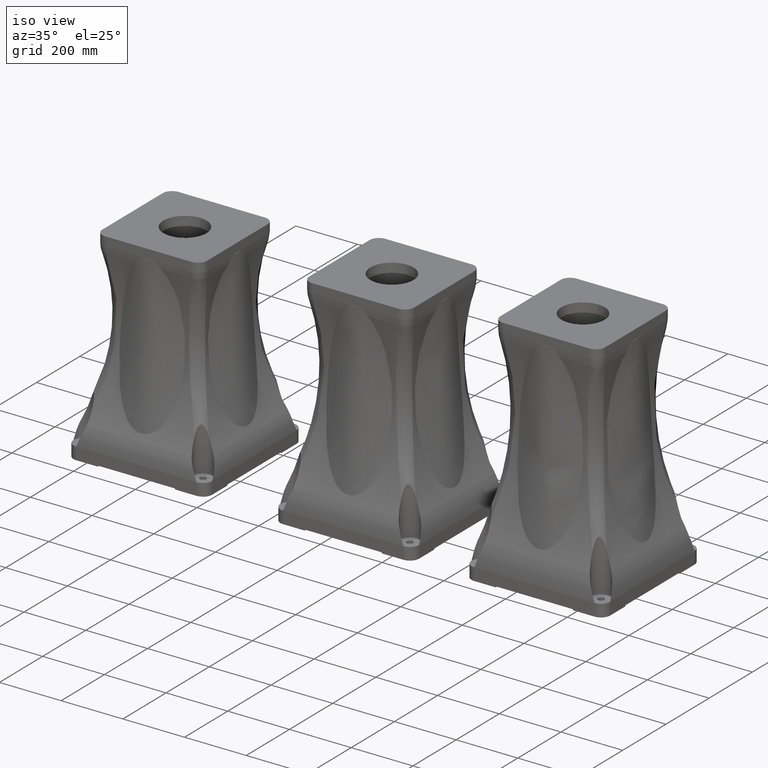
[diagram: clean part render]
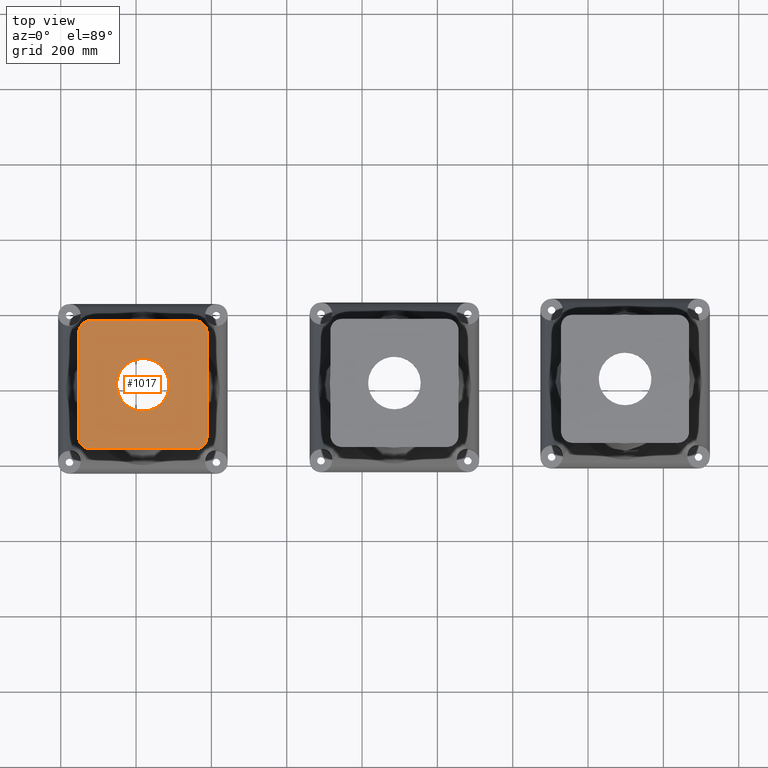
[diagram: tour spotlight — one face highlighted and labeled with its STEP entity id]
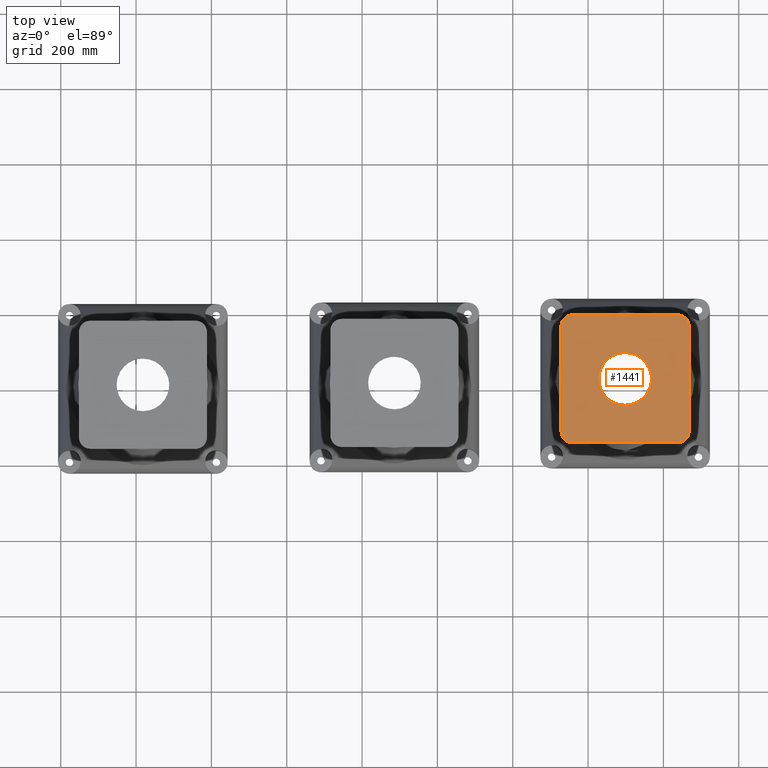
[diagram: tour spotlight — one face highlighted and labeled with its STEP entity id]
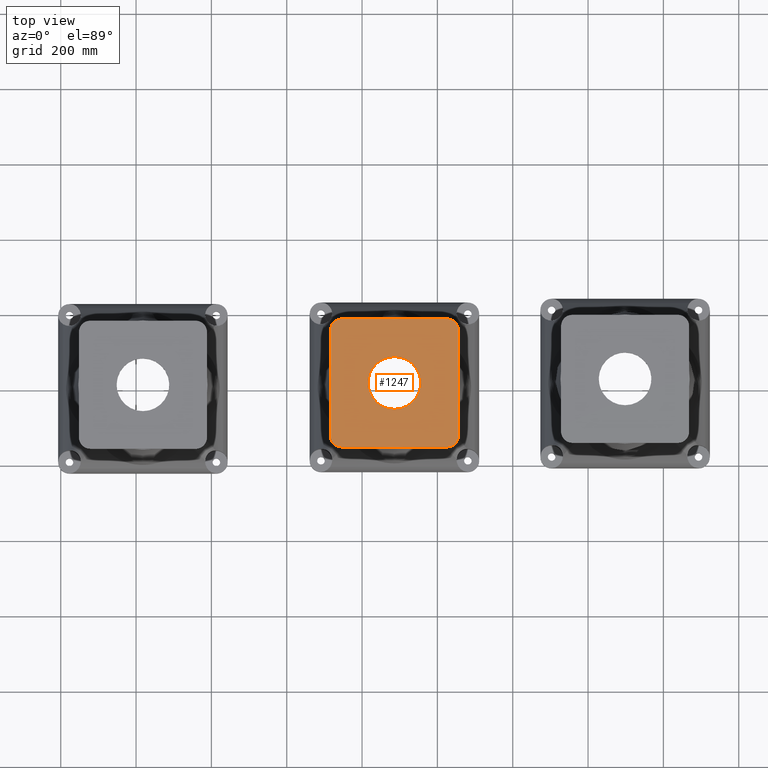
[diagram: tour spotlight — one face highlighted and labeled with its STEP entity id]
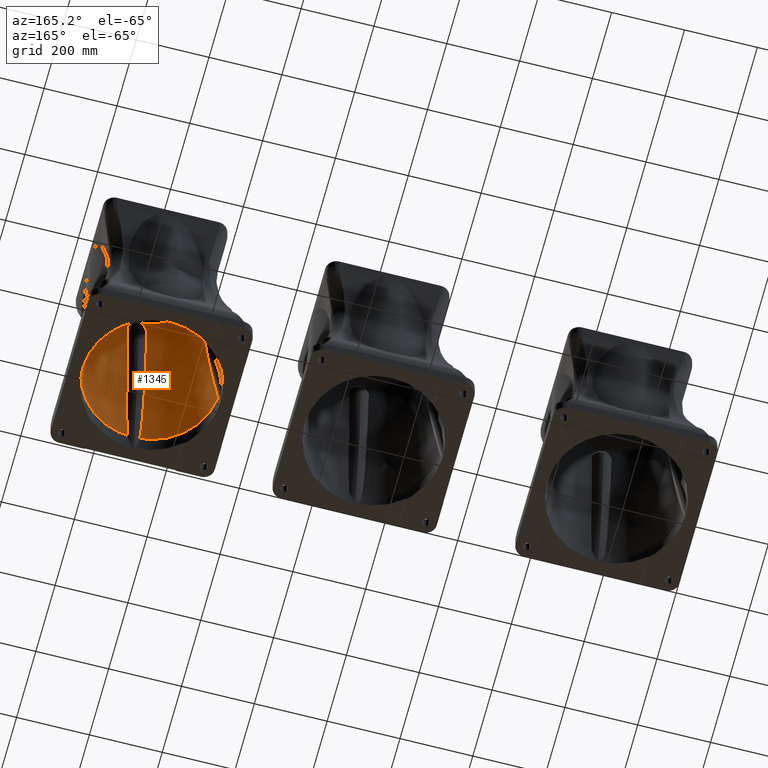
[diagram: tour spotlight — one face highlighted and labeled with its STEP entity id]
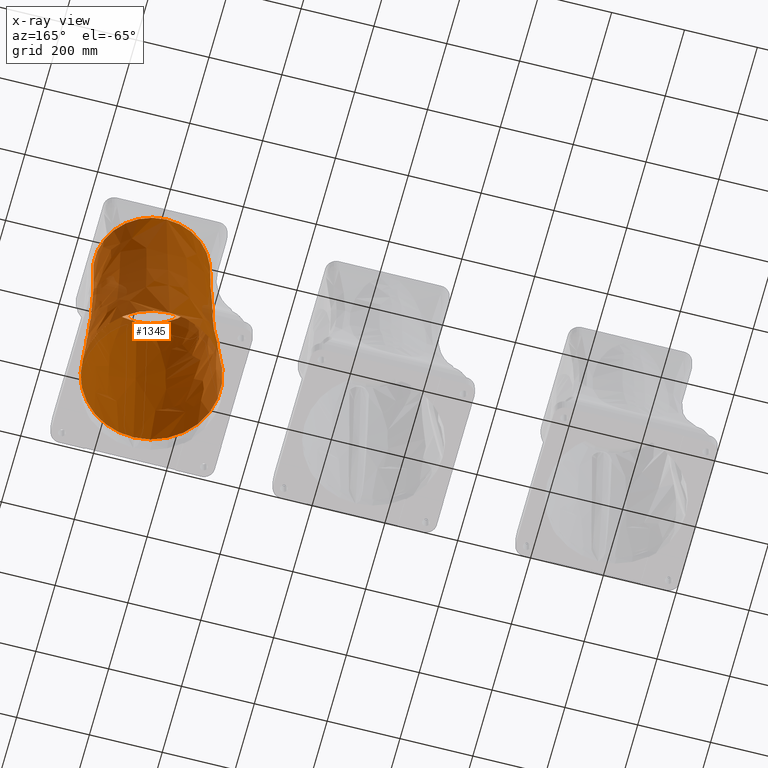
[diagram: x-ray of the same camera — body ghosted, this tour face saturated]
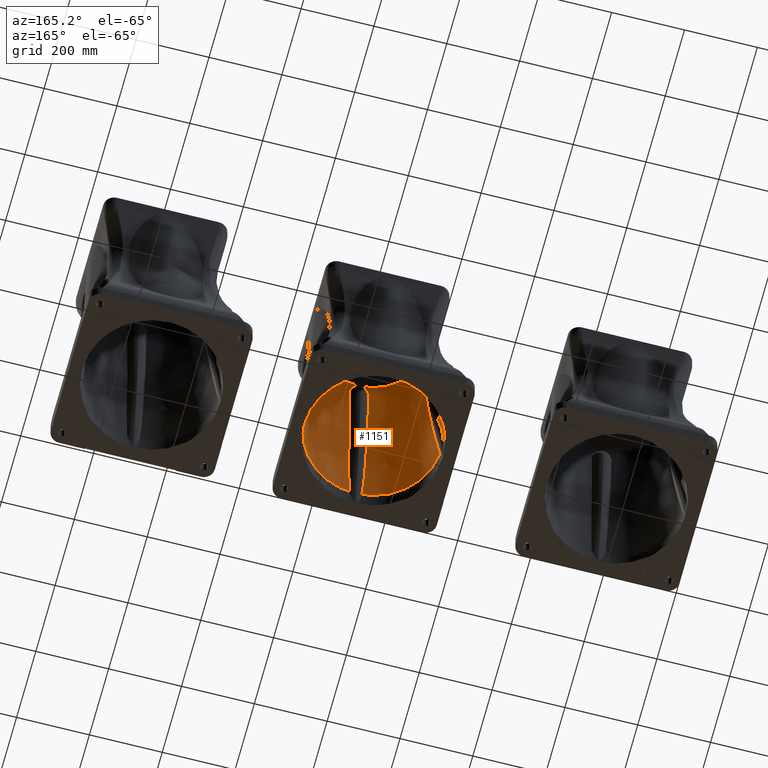
[diagram: tour spotlight — one face highlighted and labeled with its STEP entity id]
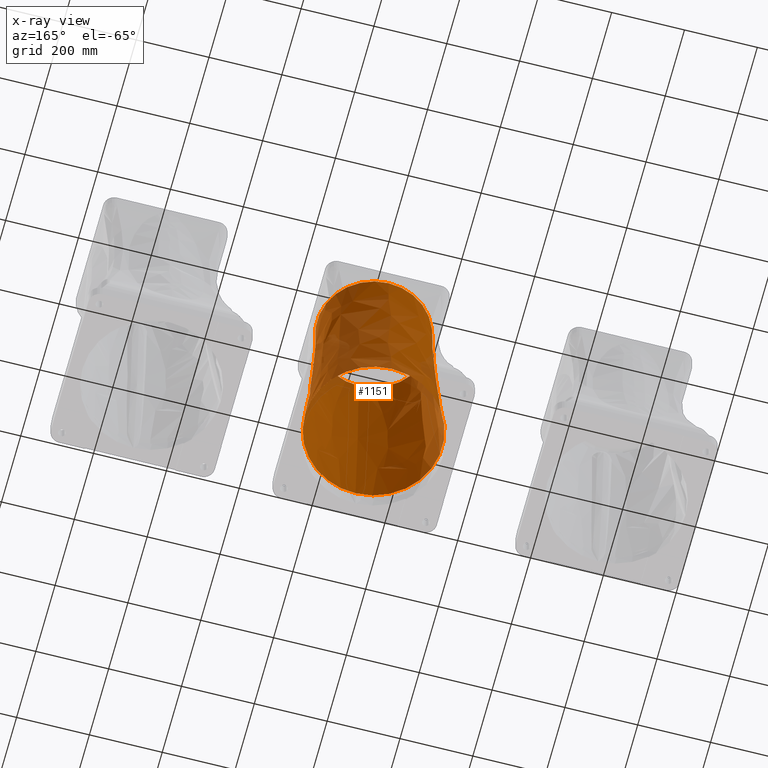
[diagram: x-ray of the same camera — body ghosted, this tour face saturated]
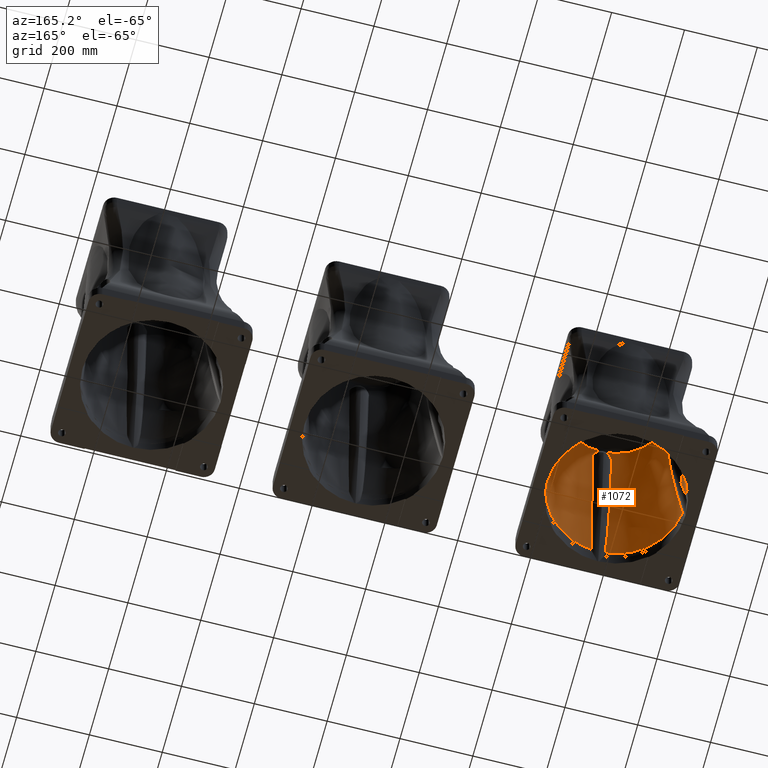
[diagram: tour spotlight — one face highlighted and labeled with its STEP entity id]
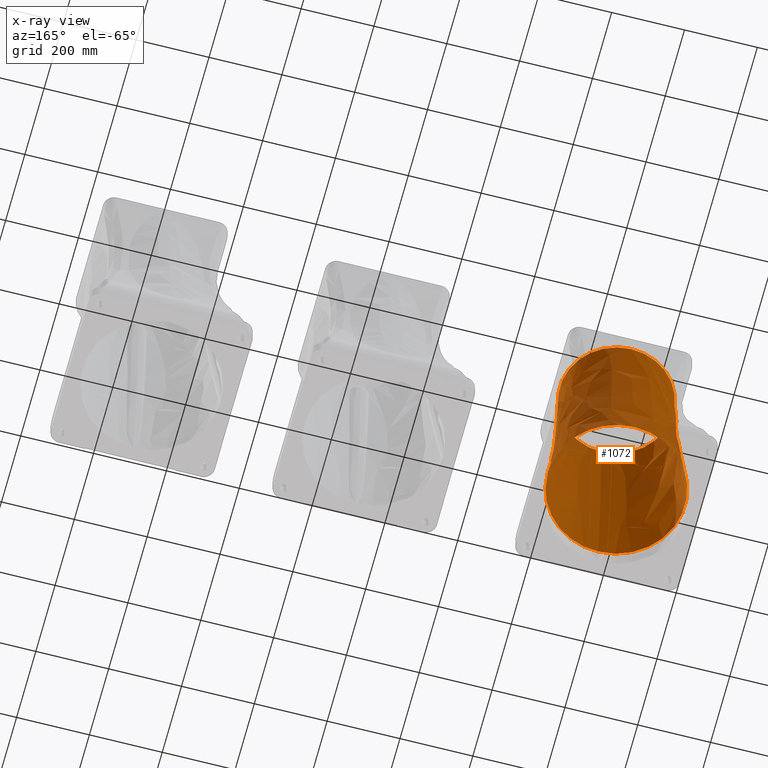
[diagram: x-ray of the same camera — body ghosted, this tour face saturated]
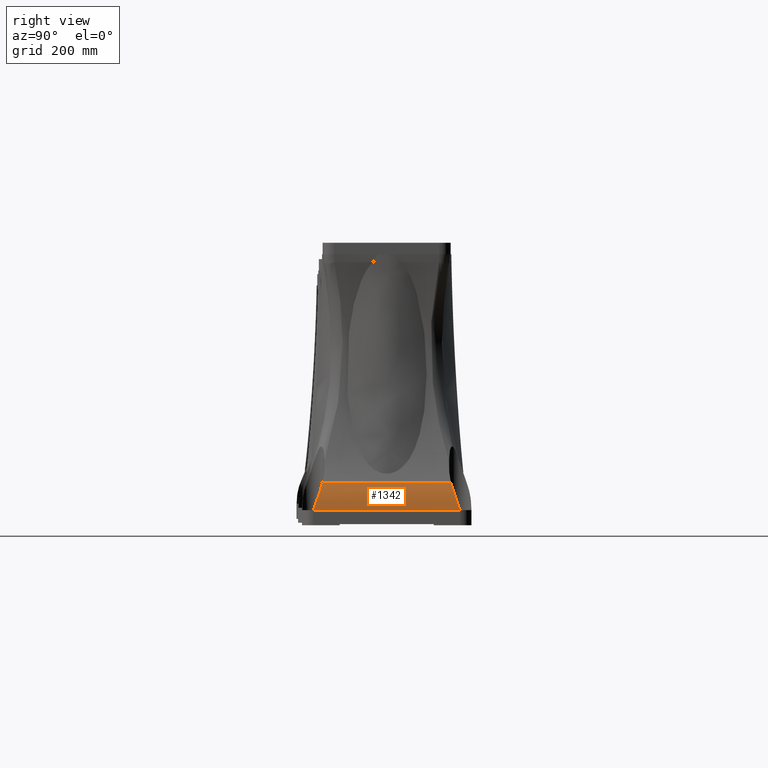
[diagram: tour spotlight — one face highlighted and labeled with its STEP entity id]
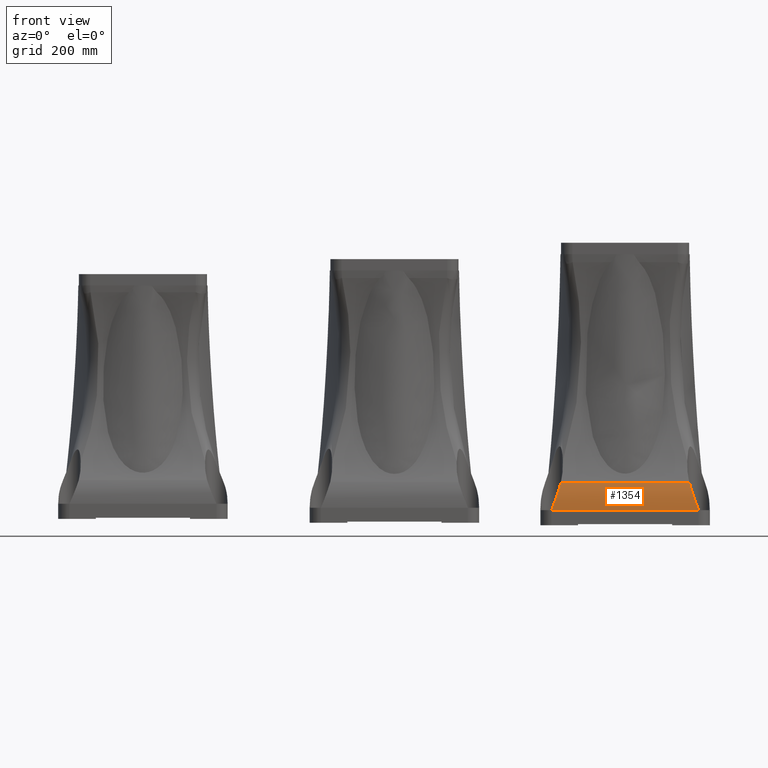
[diagram: tour spotlight — one face highlighted and labeled with its STEP entity id]
A machine part: a face-by-face anatomy tour. The part has 543 B-rep faces; the first image is the clean iso view, then the 8 largest visible faces are spotlighted one at a time (largest first), each with its STEP entity span.

Face 1 — top view, entity #1017. In plain terms, the highlighted planar face has unit normal (0, 0, 1).
Definition (entity closure, byte-faithful):
#1017=ADVANCED_FACE('',(#1668,#1669),#1670,.T.);
#1668=FACE_OUTER_BOUND('',#2832,.T.);
#1669=FACE_BOUND('',#2833,.T.);
#1670=PLANE('',#2834);
#2832=EDGE_LOOP('',(#10445,#10446,#10447,#10448,#10449,#10450,#10451,#10452));
#2833=EDGE_LOOP('',(#10453));
#2834=AXIS2_PLACEMENT_3D('',#10454,#10455,#10456);
#10445=ORIENTED_EDGE('',*,*,#14581,.T.);
#10446=ORIENTED_EDGE('',*,*,#14579,.T.);
#10447=ORIENTED_EDGE('',*,*,#14582,.T.);
#10448=ORIENTED_EDGE('',*,*,#14576,.T.);
#10449=ORIENTED_EDGE('',*,*,#14583,.T.);
#10450=ORIENTED_EDGE('',*,*,#14570,.T.);
#10451=ORIENTED_EDGE('',*,*,#14584,.T.);
#10452=ORIENTED_EDGE('',*,*,#14573,.T.);
#10453=ORIENTED_EDGE('',*,*,#14423,.T.);
#10454=CARTESIAN_POINT('',(376.588,-180.555555555556,1049.99968463017));
#10455=DIRECTION('',(0.0,-0.0,1.0));
#10456=DIRECTION('',(0.0,1.0,0.0));
#14423=EDGE_CURVE('',#15709,#15709,#15710,.F.);
#14570=EDGE_CURVE('',#15939,#15937,#15940,.T.);
#14573=EDGE_CURVE('',#15944,#15942,#15945,.T.);
#14576=EDGE_CURVE('',#15949,#15947,#15950,.T.);
#14579=EDGE_CURVE('',#15954,#15952,#15955,.T.);
#14581=EDGE_CURVE('',#15942,#15954,#15957,.T.);
#14582=EDGE_CURVE('',#15952,#15949,#15958,.T.);
#14583=EDGE_CURVE('',#15947,#15939,#15959,.T.);
#14584=EDGE_CURVE('',#15937,#15944,#15960,.T.);
#15709=VERTEX_POINT('',#17801);
#15710=CIRCLE('',#17802,70.0);
#15937=VERTEX_POINT('',#18085);
#15939=VERTEX_POINT('',#18088);
#15940=CIRCLE('',#18089,30.0);
#15942=VERTEX_POINT('',#18092);
#15944=VERTEX_POINT('',#18095);
#15945=CIRCLE('',#18096,30.0);
#15947=VERTEX_POINT('',#18099);
#15949=VERTEX_POINT('',#18102);
#15950=CIRCLE('',#18103,30.0);
#15952=VERTEX_POINT('',#18106);
#15954=VERTEX_POINT('',#18109);
#15955=CIRCLE('',#18110,30.0);
#15957=LINE('',#18113,#18114);
#15958=LINE('',#18115,#18116);
#15959=LINE('',#18117,#18118);
#15960=LINE('',#18119,#18120);
#17801=CARTESIAN_POINT('',(206.588,59.4444444444446,1049.99968463017));
#17802=AXIS2_PLACEMENT_3D('',#30015,#30016,#30017);
#18085=CARTESIAN_POINT('',(346.588,159.444444444444,1049.99968463017));
#18088=CARTESIAN_POINT('',(376.588,129.444444444444,1049.99968463017));
#18089=AXIS2_PLACEMENT_3D('',#30342,#30343,#30344);
#18092=CARTESIAN_POINT('',(36.588,129.444444444444,1049.99968463017));
#18095=CARTESIAN_POINT('',(66.588,159.444444444444,1049.99968463017));
#18096=AXIS2_PLACEMENT_3D('',#30347,#30348,#30349);
#18099=CARTESIAN_POINT('',(376.588,-150.555555555556,1049.99968463017));
#18102=CARTESIAN_POINT('',(346.588,-180.555555555556,1049.99968463017));
#18103=AXIS2_PLACEMENT_3D('',#30352,#30353,#30354);
#18106=CARTESIAN_POINT('',(66.588,-180.555555555556,1049.99968463017));
#18109=CARTESIAN_POINT('',(36.588,-150.555555555556,1049.99968463017));
#18110=AXIS2_PLACEMENT_3D('',#30357,#30358,#30359);
#18113=CARTESIAN_POINT('',(36.588,159.444444444444,1049.99968463017));
#18114=VECTOR('',#30361,1.0);
#18115=CARTESIAN_POINT('',(36.588,-180.555555555556,1049.99968463017));
#18116=VECTOR('',#30362,1.0);
#18117=CARTESIAN_POINT('',(376.588,-180.555555555556,1049.99968463017));
#18118=VECTOR('',#30363,1.0);
#18119=CARTESIAN_POINT('',(376.588,159.444444444444,1049.99968463017));
#18120=VECTOR('',#30364,1.0);
#30015=CARTESIAN_POINT('',(206.588,-10.5555555555554,1049.99968463017));
#30016=DIRECTION('',(0.0,-0.0,1.0));
#30017=DIRECTION('',(0.0,1.0,0.0));
#30342=CARTESIAN_POINT('',(346.588,129.444444444444,1049.99968463017));
#30343=DIRECTION('',(0.0,-0.0,1.0));
#30344=DIRECTION('',(0.0,1.0,0.0));
#30347=CARTESIAN_POINT('',(66.588,129.444444444444,1049.99968463017));
#30348=DIRECTION('',(0.0,-0.0,1.0));
#30349=DIRECTION('',(0.0,1.0,0.0));
#30352=CARTESIAN_POINT('',(346.588,-150.555555555556,1049.99968463017));
#30353=DIRECTION('',(0.0,-0.0,1.0));
#30354=DIRECTION('',(0.0,1.0,0.0));
#30357=CARTESIAN_POINT('',(66.588,-150.555555555556,1049.99968463017));
#30358=DIRECTION('',(0.0,-0.0,1.0));
#30359=DIRECTION('',(0.0,1.0,0.0));
#30361=DIRECTION('',(0.0,-1.0,0.0));
#30362=DIRECTION('',(1.0,0.0,0.0));
#30363=DIRECTION('',(0.0,1.0,0.0));
#30364=DIRECTION('',(-1.0,0.0,0.0));

Face 2 — top view, entity #1441. In plain terms, the highlighted planar face has unit normal (0, 0, 1).
Definition (entity closure, byte-faithful):
#1441=ADVANCED_FACE('',(#2520,#2521),#2522,.T.);
#2520=FACE_OUTER_BOUND('',#8379,.T.);
#2521=FACE_BOUND('',#8380,.T.);
#2522=PLANE('',#8381);
#8379=EDGE_LOOP('',(#13919,#13920,#13921,#13922,#13923,#13924,#13925,#13926));
#8380=EDGE_LOOP('',(#13927));
#8381=AXIS2_PLACEMENT_3D('',#13928,#13929,#13930);
#13919=ORIENTED_EDGE('',*,*,#15524,.T.);
#13920=ORIENTED_EDGE('',*,*,#15522,.T.);
#13921=ORIENTED_EDGE('',*,*,#15525,.T.);
#13922=ORIENTED_EDGE('',*,*,#15519,.T.);
#13923=ORIENTED_EDGE('',*,*,#15526,.T.);
#13924=ORIENTED_EDGE('',*,*,#15513,.T.);
#13925=ORIENTED_EDGE('',*,*,#15527,.T.);
#13926=ORIENTED_EDGE('',*,*,#15516,.T.);
#13927=ORIENTED_EDGE('',*,*,#15366,.T.);
#13928=CARTESIAN_POINT('',(376.588,-180.555555555556,1049.99968463017));
#13929=DIRECTION('',(0.0,-0.0,1.0));
#13930=DIRECTION('',(0.0,1.0,0.0));
#15366=EDGE_CURVE('',#17251,#17251,#17252,.F.);
#15513=EDGE_CURVE('',#17481,#17479,#17482,.T.);
#15516=EDGE_CURVE('',#17486,#17484,#17487,.T.);
#15519=EDGE_CURVE('',#17491,#17489,#17492,.T.);
#15522=EDGE_CURVE('',#17496,#17494,#17497,.T.);
#15524=EDGE_CURVE('',#17484,#17496,#17499,.T.);
#15525=EDGE_CURVE('',#17494,#17491,#17500,.T.);
#15526=EDGE_CURVE('',#17489,#17481,#17501,.T.);
#15527=EDGE_CURVE('',#17479,#17486,#17502,.T.);
#17251=VERTEX_POINT('',#28353);
#17252=CIRCLE('',#28354,70.0);
#17479=VERTEX_POINT('',#28637);
#17481=VERTEX_POINT('',#28640);
#17482=CIRCLE('',#28641,30.0);
#17484=VERTEX_POINT('',#28644);
#17486=VERTEX_POINT('',#28647);
#17487=CIRCLE('',#28648,30.0);
#17489=VERTEX_POINT('',#28651);
#17491=VERTEX_POINT('',#28654);
#17492=CIRCLE('',#28655,30.0);
#17494=VERTEX_POINT('',#28658);
#17496=VERTEX_POINT('',#28661);
#17497=CIRCLE('',#28662,30.0);
#17499=LINE('',#28665,#28666);
#17500=LINE('',#28667,#28668);
#17501=LINE('',#28669,#28670);
#17502=LINE('',#28671,#28672);
#28353=CARTESIAN_POINT('',(206.588,59.4444444444446,1049.99968463017));
#28354=AXIS2_PLACEMENT_3D('',#31192,#31193,#31194);
#28637=CARTESIAN_POINT('',(346.588,159.444444444444,1049.99968463017));
#28640=CARTESIAN_POINT('',(376.588,129.444444444444,1049.99968463017));
#28641=AXIS2_PLACEMENT_3D('',#31519,#31520,#31521);
#28644=CARTESIAN_POINT('',(36.588,129.444444444444,1049.99968463017));
#28647=CARTESIAN_POINT('',(66.588,159.444444444444,1049.99968463017));
#28648=AXIS2_PLACEMENT_3D('',#31524,#31525,#31526);
#28651=CARTESIAN_POINT('',(376.588,-150.555555555556,1049.99968463017));
#28654=CARTESIAN_POINT('',(346.588,-180.555555555556,1049.99968463017));
#28655=AXIS2_PLACEMENT_3D('',#31529,#31530,#31531);
#28658=CARTESIAN_POINT('',(66.588,-180.555555555556,1049.99968463017));
#28661=CARTESIAN_POINT('',(36.588,-150.555555555556,1049.99968463017));
#28662=AXIS2_PLACEMENT_3D('',#31534,#31535,#31536);
#28665=CARTESIAN_POINT('',(36.588,159.444444444444,1049.99968463017));
#28666=VECTOR('',#31538,1.0);
#28667=CARTESIAN_POINT('',(36.588,-180.555555555556,1049.99968463017));
#28668=VECTOR('',#31539,1.0);
#28669=CARTESIAN_POINT('',(376.588,-180.555555555556,1049.99968463017));
#28670=VECTOR('',#31540,1.0);
#28671=CARTESIAN_POINT('',(376.588,159.444444444444,1049.99968463017));
#28672=VECTOR('',#31541,1.0);
#31192=CARTESIAN_POINT('',(206.588,-10.5555555555554,1049.99968463017));
#31193=DIRECTION('',(0.0,-0.0,1.0));
#31194=DIRECTION('',(0.0,1.0,0.0));
#31519=CARTESIAN_POINT('',(346.588,129.444444444444,1049.99968463017));
#31520=DIRECTION('',(0.0,-0.0,1.0));
#31521=DIRECTION('',(0.0,1.0,0.0));
#31524=CARTESIAN_POINT('',(66.588,129.444444444444,1049.99968463017));
#31525=DIRECTION('',(0.0,-0.0,1.0));
#31526=DIRECTION('',(0.0,1.0,0.0));
#31529=CARTESIAN_POINT('',(346.588,-150.555555555556,1049.99968463017));
#31530=DIRECTION('',(0.0,-0.0,1.0));
#31531=DIRECTION('',(0.0,1.0,0.0));
#31534=CARTESIAN_POINT('',(66.588,-150.555555555556,1049.99968463017));
#31535=DIRECTION('',(0.0,-0.0,1.0));
#31536=DIRECTION('',(0.0,1.0,0.0));
#31538=DIRECTION('',(0.0,-1.0,0.0));
#31539=DIRECTION('',(1.0,0.0,0.0));
#31540=DIRECTION('',(0.0,1.0,0.0));
#31541=DIRECTION('',(-1.0,0.0,0.0));

Face 3 — top view, entity #1247. In plain terms, the highlighted planar face has unit normal (0, 0, 1).
Definition (entity closure, byte-faithful):
#1247=ADVANCED_FACE('',(#2132,#2133),#2134,.T.);
#2132=FACE_OUTER_BOUND('',#5910,.T.);
#2133=FACE_BOUND('',#5911,.T.);
#2134=PLANE('',#5912);
#5910=EDGE_LOOP('',(#12446,#12447,#12448,#12449,#12450,#12451,#12452,#12453));
#5911=EDGE_LOOP('',(#12454));
#5912=AXIS2_PLACEMENT_3D('',#12455,#12456,#12457);
#12446=ORIENTED_EDGE('',*,*,#15098,.T.);
#12447=ORIENTED_EDGE('',*,*,#15096,.T.);
#12448=ORIENTED_EDGE('',*,*,#15099,.T.);
#12449=ORIENTED_EDGE('',*,*,#15093,.T.);
#12450=ORIENTED_EDGE('',*,*,#15100,.T.);
#12451=ORIENTED_EDGE('',*,*,#15087,.T.);
#12452=ORIENTED_EDGE('',*,*,#15101,.T.);
#12453=ORIENTED_EDGE('',*,*,#15090,.T.);
#12454=ORIENTED_EDGE('',*,*,#14940,.T.);
#12455=CARTESIAN_POINT('',(376.588,-180.555555555556,1049.99968463017));
#12456=DIRECTION('',(0.0,-0.0,1.0));
#12457=DIRECTION('',(0.0,1.0,0.0));
#14940=EDGE_CURVE('',#16555,#16555,#16556,.F.);
#15087=EDGE_CURVE('',#16785,#16783,#16786,.T.);
#15090=EDGE_CURVE('',#16790,#16788,#16791,.T.);
#15093=EDGE_CURVE('',#16795,#16793,#16796,.T.);
#15096=EDGE_CURVE('',#16800,#16798,#16801,.T.);
#15098=EDGE_CURVE('',#16788,#16800,#16803,.T.);
#15099=EDGE_CURVE('',#16798,#16795,#16804,.T.);
#15100=EDGE_CURVE('',#16793,#16785,#16805,.T.);
#15101=EDGE_CURVE('',#16783,#16790,#16806,.T.);
#16555=VERTEX_POINT('',#24425);
#16556=CIRCLE('',#24426,70.0);
#16783=VERTEX_POINT('',#24709);
#16785=VERTEX_POINT('',#24712);
#16786=CIRCLE('',#24713,30.0);
#16788=VERTEX_POINT('',#24716);
#16790=VERTEX_POINT('',#24719);
#16791=CIRCLE('',#24720,30.0);
#16793=VERTEX_POINT('',#24723);
#16795=VERTEX_POINT('',#24726);
#16796=CIRCLE('',#24727,30.0);
#16798=VERTEX_POINT('',#24730);
#16800=VERTEX_POINT('',#24733);
#16801=CIRCLE('',#24734,30.0);
#16803=LINE('',#24737,#24738);
#16804=LINE('',#24739,#24740);
#16805=LINE('',#24741,#24742);
#16806=LINE('',#24743,#24744);
#24425=CARTESIAN_POINT('',(206.588,59.4444444444446,1049.99968463017));
#24426=AXIS2_PLACEMENT_3D('',#30662,#30663,#30664);
#24709=CARTESIAN_POINT('',(346.588,159.444444444444,1049.99968463017));
#24712=CARTESIAN_POINT('',(376.588,129.444444444444,1049.99968463017));
#24713=AXIS2_PLACEMENT_3D('',#30989,#30990,#30991);
#24716=CARTESIAN_POINT('',(36.588,129.444444444444,1049.99968463017));
#24719=CARTESIAN_POINT('',(66.588,159.444444444444,1049.99968463017));
#24720=AXIS2_PLACEMENT_3D('',#30994,#30995,#30996);
#24723=CARTESIAN_POINT('',(376.588,-150.555555555556,1049.99968463017));
#24726=CARTESIAN_POINT('',(346.588,-180.555555555556,1049.99968463017));
#24727=AXIS2_PLACEMENT_3D('',#30999,#31000,#31001);
#24730=CARTESIAN_POINT('',(66.588,-180.555555555556,1049.99968463017));
#24733=CARTESIAN_POINT('',(36.588,-150.555555555556,1049.99968463017));
#24734=AXIS2_PLACEMENT_3D('',#31004,#31005,#31006);
#24737=CARTESIAN_POINT('',(36.588,159.444444444444,1049.99968463017));
#24738=VECTOR('',#31008,1.0);
#24739=CARTESIAN_POINT('',(36.588,-180.555555555556,1049.99968463017));
#24740=VECTOR('',#31009,1.0);
#24741=CARTESIAN_POINT('',(376.588,-180.555555555556,1049.99968463017));
#24742=VECTOR('',#31010,1.0);
#24743=CARTESIAN_POINT('',(376.588,159.444444444444,1049.99968463017));
#24744=VECTOR('',#31011,1.0);
#30662=CARTESIAN_POINT('',(206.588,-10.5555555555554,1049.99968463017));
#30663=DIRECTION('',(0.0,-0.0,1.0));
#30664=DIRECTION('',(0.0,1.0,0.0));
#30989=CARTESIAN_POINT('',(346.588,129.444444444444,1049.99968463017));
#30990=DIRECTION('',(0.0,-0.0,1.0));
#30991=DIRECTION('',(0.0,1.0,0.0));
#30994=CARTESIAN_POINT('',(66.588,129.444444444444,1049.99968463017));
#30995=DIRECTION('',(0.0,-0.0,1.0));
#30996=DIRECTION('',(0.0,1.0,0.0));
#30999=CARTESIAN_POINT('',(346.588,-150.555555555556,1049.99968463017));
#31000=DIRECTION('',(0.0,-0.0,1.0));
#31001=DIRECTION('',(0.0,1.0,0.0));
#31004=CARTESIAN_POINT('',(66.588,-150.555555555556,1049.99968463017));
#31005=DIRECTION('',(0.0,-0.0,1.0));
#31006=DIRECTION('',(0.0,1.0,0.0));
#31008=DIRECTION('',(0.0,-1.0,0.0));
#31009=DIRECTION('',(1.0,0.0,0.0));
#31010=DIRECTION('',(0.0,1.0,0.0));
#31011=DIRECTION('',(-1.0,0.0,0.0));

Face 4 — auxiliary view, entity #1345. An x-ray twin of the same camera follows (body ghosted, this face saturated) — the face is partly hidden behind the body. In plain terms, the highlighted face is a freeform B-spline surface patch.
Definition (entity closure, byte-faithful):
#1345=ADVANCED_FACE('',(#2318,#2319),#2320,.T.);
#2318=FACE_OUTER_BOUND('',#7627,.T.);
#2319=FACE_OUTER_BOUND('',#7628,.T.);
#2320=(B_SPLINE_SURFACE(3,3,((#7630,#7631,#7632,#7633,#7634,#7635,#7636),(#7637,#7638,#7639,#7640,#7641,#7642,#7643),(#7644,#7645,#7646,#7647,#7648,#7649,#7650),(#7651,#7652,#7653,#7654,#7655,#7656,#7657),(#7658,#7659,#7660,#7661,#7662,#7663,#7664),(#7665,#7666,#7667,#7668,#7669,#7670,#7671),(#7672,#7673,#7674,#7675,#7676,#7677,#7678)),.UNSPECIFIED.,.T.,.T.,.F.)B_SPLINE_SURFACE_WITH_KNOTS((4,3,4),(4,3,4),(0.0,0.5,1.0),(0.0,0.5,1.0),.UNSPECIFIED.)RATIONAL_B_SPLINE_SURFACE(((1.0,0.333333333333334,0.333333333333334,1.0,0.333333333333334,0.333333333333334,1.0),(0.333333333333334,0.111111111111111,0.111111111111111,0.333333333333334,0.111111111111111,0.111111111111111,0.333333333333334),(0.333333333333334,0.111111111111111,0.111111111111111,0.333333333333334,0.111111111111111,0.111111111111111,0.333333333333334),(1.0,0.333333333333334,0.333333333333334,1.0,0.333333333333334,0.333333333333334,1.0),(0.333333333333334,0.111111111111111,0.111111111111111,0.333333333333334,0.111111111111111,0.111111111111111,0.333333333333334),(0.333333333333334,0.111111111111111,0.111111111111111,0.333333333333334,0.111111111111111,0.111111111111111,0.333333333333334),(1.0,0.333333333333334,0.333333333333334,1.0,0.333333333333334,0.333333333333334,1.0)))BOUNDED_SURFACE()REPRESENTATION_ITEM('')GEOMETRIC_REPRESENTATION_ITEM()SURFACE());
#7627=EDGE_LOOP('',(#13141));
#7628=EDGE_LOOP('',(#13142));
#7630=CARTESIAN_POINT('',(206.588,-540.555555555557,-287.885450174491));
#7631=CARTESIAN_POINT('',(1266.588,-540.555555555556,-287.885450174491));
#7632=CARTESIAN_POINT('',(1266.588,519.444444444445,-287.885450174491));
#7633=CARTESIAN_POINT('',(206.588,519.444444444446,-287.885450174491));
#7634=CARTESIAN_POINT('',(-853.412000000002,519.444444444445,-287.885450174491));
#7635=CARTESIAN_POINT('',(-853.412000000002,-540.555555555556,-287.885450174491));
#7636=CARTESIAN_POINT('',(206.588,-540.555555555557,-287.885450174491));
#7637=CARTESIAN_POINT('',(206.588,209.444444444443,-287.885450174491));
#7638=CARTESIAN_POINT('',(-233.411999999997,209.444444444443,-287.885450174491));
#7639=CARTESIAN_POINT('',(-233.411999999997,-230.555555555555,-287.885450174491));
#7640=CARTESIAN_POINT('',(206.588,-230.555555555554,-287.885450174491));
#7641=CARTESIAN_POINT('',(646.587999999999,-230.555555555554,-287.885450174491));
#7642=CARTESIAN_POINT('',(646.587999999998,209.444444444444,-287.885450174491));
#7643=CARTESIAN_POINT('',(206.588,209.444444444443,-287.885450174491));
#7644=CARTESIAN_POINT('',(206.588,209.444444444443,3355.94143673181));
#7645=CARTESIAN_POINT('',(-233.411999999999,209.444444444443,3355.94143673181));
#7646=CARTESIAN_POINT('',(-233.411999999998,-230.555555555555,3355.94143673181));
#7647=CARTESIAN_POINT('',(206.588000000001,-230.555555555555,3355.94143673181));
#7648=CARTESIAN_POINT('',(646.588,-230.555555555554,3355.94143673181));
#7649=CARTESIAN_POINT('',(646.587999999999,209.444444444445,3355.94143673181));
#7650=CARTESIAN_POINT('',(206.588,209.444444444443,3355.94143673181));
#7651=CARTESIAN_POINT('',(206.588,-540.555555555556,3355.94143673181));
#7652=CARTESIAN_POINT('',(1266.588,-540.555555555556,3355.94143673181));
#7653=CARTESIAN_POINT('',(1266.588,519.444444444444,3355.94143673181));
#7654=CARTESIAN_POINT('',(206.588,519.444444444445,3355.94143673181));
#7655=CARTESIAN_POINT('',(-853.412,519.444444444445,3355.94143673181));
#7656=CARTESIAN_POINT('',(-853.412,-540.555555555555,3355.94143673181));
#7657=CARTESIAN_POINT('',(206.588,-540.555555555556,3355.94143673181));
#7658=CARTESIAN_POINT('',(206.588,-1290.55555555556,3355.94143673181));
#7659=CARTESIAN_POINT('',(2766.58800000001,-1290.55555555556,3355.94143673181));
#7660=CARTESIAN_POINT('',(2766.58800000001,1269.44444444445,3355.94143673181));
#7661=CARTESIAN_POINT('',(206.588000000001,1269.44444444444,3355.94143673181));
#7662=CARTESIAN_POINT('',(-2353.412,1269.44444444445,3355.94143673181));
#7663=CARTESIAN_POINT('',(-2353.412,-1290.55555555556,3355.94143673181));
#7664=CARTESIAN_POINT('',(206.588,-1290.55555555556,3355.94143673181));
#7665=CARTESIAN_POINT('',(206.588,-1290.55555555556,-287.88545017449));
#7666=CARTESIAN_POINT('',(2766.58800000001,-1290.55555555556,-287.885450174491));
#7667=CARTESIAN_POINT('',(2766.58800000001,1269.44444444445,-287.885450174491));
#7668=CARTESIAN_POINT('',(206.588,1269.44444444444,-287.88545017449));
#7669=CARTESIAN_POINT('',(-2353.412,1269.44444444445,-287.885450174491));
#7670=CARTESIAN_POINT('',(-2353.412,-1290.55555555556,-287.885450174491));
#7671=CARTESIAN_POINT('',(206.588,-1290.55555555556,-287.88545017449));
#7672=CARTESIAN_POINT('',(206.588,-540.555555555557,-287.885450174491));
#7673=CARTESIAN_POINT('',(1266.588,-540.555555555556,-287.885450174491));
#7674=CARTESIAN_POINT('',(1266.588,519.444444444445,-287.885450174491));
#7675=CARTESIAN_POINT('',(206.588,519.444444444446,-287.885450174491));
#7676=CARTESIAN_POINT('',(-853.412000000002,519.444444444445,-287.885450174491));
#7677=CARTESIAN_POINT('',(-853.412000000002,-540.555555555556,-287.885450174491));
#7678=CARTESIAN_POINT('',(206.588,-540.555555555557,-287.885450174491));
#13141=ORIENTED_EDGE('',*,*,#15322,.F.);
#13142=ORIENTED_EDGE('',*,*,#15323,.T.);
#15322=EDGE_CURVE('',#17183,#17183,#17184,.T.);
#15323=EDGE_CURVE('',#17185,#17185,#17186,.T.);
#17183=VERTEX_POINT('',#27551);
#17184=CIRCLE('',#27552,188.548448375832);
#17185=VERTEX_POINT('',#27553);
#17186=CIRCLE('',#27554,155.545755020134);
#27551=CARTESIAN_POINT('',(395.136448375832,-10.5555555555555,780.800600286569));
#27552=AXIS2_PLACEMENT_3D('',#31158,#31159,#31160);
#27553=CARTESIAN_POINT('',(206.588,-166.10131057569,1435.76999684969));
#27554=AXIS2_PLACEMENT_3D('',#31161,#31162,#31163);
#31158=CARTESIAN_POINT('',(206.588,-10.5555555555555,780.800600286569));
#31159=DIRECTION('',(-8.83239587110384E-016,0.0,1.0));
#31160=DIRECTION('',(1.0,0.0,8.83239587110384E-016));
#31161=CARTESIAN_POINT('',(206.588,-10.5555555555555,1435.76999684969));
#31162=DIRECTION('',(0.0,1.42751954173413E-015,1.0));
#31163=DIRECTION('',(0.0,-1.0,1.42751954173413E-015));

Face 5 — auxiliary view, entity #1151. An x-ray twin of the same camera follows (body ghosted, this face saturated) — the face is partly hidden behind the body. In plain terms, the highlighted face is a freeform B-spline surface patch.
Definition (entity closure, byte-faithful):
#1151=ADVANCED_FACE('',(#1930,#1931),#1932,.T.);
#1930=FACE_OUTER_BOUND('',#5158,.T.);
#1931=FACE_OUTER_BOUND('',#5159,.T.);
#1932=(B_SPLINE_SURFACE(3,3,((#5161,#5162,#5163,#5164,#5165,#5166,#5167),(#5168,#5169,#5170,#5171,#5172,#5173,#5174),(#5175,#5176,#5177,#5178,#5179,#5180,#5181),(#5182,#5183,#5184,#5185,#5186,#5187,#5188),(#5189,#5190,#5191,#5192,#5193,#5194,#5195),(#5196,#5197,#5198,#5199,#5200,#5201,#5202),(#5203,#5204,#5205,#5206,#5207,#5208,#5209)),.UNSPECIFIED.,.T.,.T.,.F.)B_SPLINE_SURFACE_WITH_KNOTS((4,3,4),(4,3,4),(0.0,0.5,1.0),(0.0,0.5,1.0),.UNSPECIFIED.)RATIONAL_B_SPLINE_SURFACE(((1.0,0.333333333333334,0.333333333333334,1.0,0.333333333333334,0.333333333333334,1.0),(0.333333333333334,0.111111111111111,0.111111111111111,0.333333333333334,0.111111111111111,0.111111111111111,0.333333333333334),(0.333333333333334,0.111111111111111,0.111111111111111,0.333333333333334,0.111111111111111,0.111111111111111,0.333333333333334),(1.0,0.333333333333334,0.333333333333334,1.0,0.333333333333334,0.333333333333334,1.0),(0.333333333333334,0.111111111111111,0.111111111111111,0.333333333333334,0.111111111111111,0.111111111111111,0.333333333333334),(0.333333333333334,0.111111111111111,0.111111111111111,0.333333333333334,0.111111111111111,0.111111111111111,0.333333333333334),(1.0,0.333333333333334,0.333333333333334,1.0,0.333333333333334,0.333333333333334,1.0)))BOUNDED_SURFACE()REPRESENTATION_ITEM('')GEOMETRIC_REPRESENTATION_ITEM()SURFACE());
#5158=EDGE_LOOP('',(#11668));
#5159=EDGE_LOOP('',(#11669));
#5161=CARTESIAN_POINT('',(206.588,-540.555555555557,-266.717403920282));
#5162=CARTESIAN_POINT('',(1266.588,-540.555555555556,-266.717403920281));
#5163=CARTESIAN_POINT('',(1266.588,519.444444444445,-266.717403920281));
#5164=CARTESIAN_POINT('',(206.588,519.444444444446,-266.717403920282));
#5165=CARTESIAN_POINT('',(-853.412000000002,519.444444444445,-266.717403920281));
#5166=CARTESIAN_POINT('',(-853.412000000002,-540.555555555556,-266.717403920281));
#5167=CARTESIAN_POINT('',(206.588,-540.555555555557,-266.717403920282));
#5168=CARTESIAN_POINT('',(206.588,209.444444444443,-266.717403920282));
#5169=CARTESIAN_POINT('',(-233.411999999997,209.444444444443,-266.717403920282));
#5170=CARTESIAN_POINT('',(-233.411999999997,-230.555555555555,-266.717403920282));
#5171=CARTESIAN_POINT('',(206.588,-230.555555555554,-266.717403920282));
#5172=CARTESIAN_POINT('',(646.587999999999,-230.555555555554,-266.717403920282));
#5173=CARTESIAN_POINT('',(646.587999999998,209.444444444444,-266.717403920282));
#5174=CARTESIAN_POINT('',(206.588,209.444444444443,-266.717403920282));
#5175=CARTESIAN_POINT('',(206.588,209.444444444443,3109.18105507272));
#5176=CARTESIAN_POINT('',(-233.411999999999,209.444444444443,3109.18105507272));
#5177=CARTESIAN_POINT('',(-233.411999999998,-230.555555555555,3109.18105507272));
#5178=CARTESIAN_POINT('',(206.588000000001,-230.555555555555,3109.18105507272));
#5179=CARTESIAN_POINT('',(646.588,-230.555555555554,3109.18105507272));
#5180=CARTESIAN_POINT('',(646.587999999999,209.444444444445,3109.18105507272));
#5181=CARTESIAN_POINT('',(206.588,209.444444444443,3109.18105507272));
#5182=CARTESIAN_POINT('',(206.588,-540.555555555556,3109.18105507272));
#5183=CARTESIAN_POINT('',(1266.588,-540.555555555556,3109.18105507272));
#5184=CARTESIAN_POINT('',(1266.588,519.444444444444,3109.18105507272));
#5185=CARTESIAN_POINT('',(206.588,519.444444444445,3109.18105507272));
#5186=CARTESIAN_POINT('',(-853.412,519.444444444445,3109.18105507272));
#5187=CARTESIAN_POINT('',(-853.412,-540.555555555555,3109.18105507272));
#5188=CARTESIAN_POINT('',(206.588,-540.555555555556,3109.18105507272));
#5189=CARTESIAN_POINT('',(206.588,-1290.55555555556,3109.18105507272));
#5190=CARTESIAN_POINT('',(2766.58800000001,-1290.55555555556,3109.18105507272));
#5191=CARTESIAN_POINT('',(2766.58800000001,1269.44444444445,3109.18105507272));
#5192=CARTESIAN_POINT('',(206.588000000001,1269.44444444444,3109.18105507272));
#5193=CARTESIAN_POINT('',(-2353.412,1269.44444444445,3109.18105507272));
#5194=CARTESIAN_POINT('',(-2353.412,-1290.55555555556,3109.18105507272));
#5195=CARTESIAN_POINT('',(206.588,-1290.55555555556,3109.18105507272));
#5196=CARTESIAN_POINT('',(206.588,-1290.55555555556,-266.717403920281));
#5197=CARTESIAN_POINT('',(2766.58800000001,-1290.55555555556,-266.717403920282));
#5198=CARTESIAN_POINT('',(2766.58800000001,1269.44444444445,-266.717403920282));
#5199=CARTESIAN_POINT('',(206.588,1269.44444444444,-266.717403920281));
#5200=CARTESIAN_POINT('',(-2353.412,1269.44444444445,-266.717403920282));
#5201=CARTESIAN_POINT('',(-2353.412,-1290.55555555556,-266.717403920282));
#5202=CARTESIAN_POINT('',(206.588,-1290.55555555556,-266.717403920281));
#5203=CARTESIAN_POINT('',(206.588,-540.555555555557,-266.717403920282));
#5204=CARTESIAN_POINT('',(1266.588,-540.555555555556,-266.717403920281));
#5205=CARTESIAN_POINT('',(1266.588,519.444444444445,-266.717403920281));
#5206=CARTESIAN_POINT('',(206.588,519.444444444446,-266.717403920282));
#5207=CARTESIAN_POINT('',(-853.412000000002,519.444444444445,-266.717403920281));
#5208=CARTESIAN_POINT('',(-853.412000000002,-540.555555555556,-266.717403920281));
#5209=CARTESIAN_POINT('',(206.588,-540.555555555557,-266.717403920282));
#11668=ORIENTED_EDGE('',*,*,#14896,.F.);
#11669=ORIENTED_EDGE('',*,*,#14897,.T.);
#14896=EDGE_CURVE('',#16487,#16487,#16488,.T.);
#14897=EDGE_CURVE('',#16489,#16489,#16490,.T.);
#16487=VERTEX_POINT('',#23629);
#16488=CIRCLE('',#23630,188.548448375832);
#16489=VERTEX_POINT('',#23631);
#16490=CIRCLE('',#23632,155.545755020134);
#23629=CARTESIAN_POINT('',(395.136448375832,-10.5555555555555,723.388795653293));
#23630=AXIS2_PLACEMENT_3D('',#30628,#30629,#30630);
#23631=CARTESIAN_POINT('',(206.588,-166.10131057569,1330.19868129588));
#23632=AXIS2_PLACEMENT_3D('',#30631,#30632,#30633);
#30628=CARTESIAN_POINT('',(206.588,-10.5555555555555,723.388795653293));
#30629=DIRECTION('',(-8.83239587110384E-016,0.0,1.0));
#30630=DIRECTION('',(1.0,0.0,8.83239587110384E-016));
#30631=CARTESIAN_POINT('',(206.588,-10.5555555555555,1330.19868129588));
#30632=DIRECTION('',(0.0,2.14127931260119E-015,1.0));
#30633=DIRECTION('',(0.0,-1.0,2.14127931260119E-015));

Face 6 — auxiliary view, entity #1072. An x-ray twin of the same camera follows (body ghosted, this face saturated) — the face is partly hidden behind the body. In plain terms, the highlighted face is a freeform B-spline surface patch.
Definition (entity closure, byte-faithful):
#1072=ADVANCED_FACE('',(#1794,#1795),#1796,.T.);
#1794=FACE_OUTER_BOUND('',#3312,.T.);
#1795=FACE_OUTER_BOUND('',#3313,.T.);
#1796=(B_SPLINE_SURFACE(3,3,((#3315,#3316,#3317,#3318,#3319,#3320,#3321),(#3322,#3323,#3324,#3325,#3326,#3327,#3328),(#3329,#3330,#3331,#3332,#3333,#3334,#3335),(#3336,#3337,#3338,#3339,#3340,#3341,#3342),(#3343,#3344,#3345,#3346,#3347,#3348,#3349),(#3350,#3351,#3352,#3353,#3354,#3355,#3356),(#3357,#3358,#3359,#3360,#3361,#3362,#3363)),.UNSPECIFIED.,.T.,.T.,.F.)B_SPLINE_SURFACE_WITH_KNOTS((4,3,4),(4,3,4),(0.0,0.5,1.0),(0.0,0.5,1.0),.UNSPECIFIED.)RATIONAL_B_SPLINE_SURFACE(((1.0,0.333333333333334,0.333333333333334,1.0,0.333333333333334,0.333333333333334,1.0),(0.333333333333334,0.111111111111111,0.111111111111111,0.333333333333334,0.111111111111111,0.111111111111111,0.333333333333334),(0.333333333333334,0.111111111111111,0.111111111111111,0.333333333333334,0.111111111111111,0.111111111111111,0.333333333333334),(1.0,0.333333333333334,0.333333333333334,1.0,0.333333333333334,0.333333333333334,1.0),(0.333333333333334,0.111111111111111,0.111111111111111,0.333333333333334,0.111111111111111,0.111111111111111,0.333333333333334),(0.333333333333334,0.111111111111111,0.111111111111111,0.333333333333334,0.111111111111111,0.111111111111111,0.333333333333334),(1.0,0.333333333333334,0.333333333333334,1.0,0.333333333333334,0.333333333333334,1.0)))BOUNDED_SURFACE()REPRESENTATION_ITEM('')GEOMETRIC_REPRESENTATION_ITEM()SURFACE());
#3312=EDGE_LOOP('',(#11011));
#3313=EDGE_LOOP('',(#11012));
#3315=CARTESIAN_POINT('',(206.588,-540.555555555557,-245.549355210578));
#3316=CARTESIAN_POINT('',(1266.588,-540.555555555556,-245.549355210579));
#3317=CARTESIAN_POINT('',(1266.588,519.444444444445,-245.549355210579));
#3318=CARTESIAN_POINT('',(206.588,519.444444444446,-245.549355210578));
#3319=CARTESIAN_POINT('',(-853.412000000002,519.444444444445,-245.549355210579));
#3320=CARTESIAN_POINT('',(-853.412000000002,-540.555555555556,-245.549355210579));
#3321=CARTESIAN_POINT('',(206.588,-540.555555555557,-245.549355210578));
#3322=CARTESIAN_POINT('',(206.588,209.444444444443,-245.549355210579));
#3323=CARTESIAN_POINT('',(-233.411999999997,209.444444444443,-245.549355210579));
#3324=CARTESIAN_POINT('',(-233.411999999997,-230.555555555555,-245.549355210579));
#3325=CARTESIAN_POINT('',(206.588,-230.555555555554,-245.549355210579));
#3326=CARTESIAN_POINT('',(646.587999999999,-230.555555555554,-245.549355210579));
#3327=CARTESIAN_POINT('',(646.587999999998,209.444444444444,-245.549355210579));
#3328=CARTESIAN_POINT('',(206.588,209.444444444443,-245.549355210579));
#3329=CARTESIAN_POINT('',(206.588,209.444444444443,2862.42064478942));
#3330=CARTESIAN_POINT('',(-233.411999999999,209.444444444443,2862.42064478942));
#3331=CARTESIAN_POINT('',(-233.411999999998,-230.555555555555,2862.42064478942));
#3332=CARTESIAN_POINT('',(206.588000000001,-230.555555555555,2862.42064478942));
#3333=CARTESIAN_POINT('',(646.588,-230.555555555554,2862.42064478942));
#3334=CARTESIAN_POINT('',(646.587999999999,209.444444444445,2862.42064478942));
#3335=CARTESIAN_POINT('',(206.588,209.444444444443,2862.42064478942));
#3336=CARTESIAN_POINT('',(206.588,-540.555555555556,2862.42064478942));
#3337=CARTESIAN_POINT('',(1266.588,-540.555555555556,2862.42064478942));
#3338=CARTESIAN_POINT('',(1266.588,519.444444444444,2862.42064478942));
#3339=CARTESIAN_POINT('',(206.588,519.444444444445,2862.42064478942));
#3340=CARTESIAN_POINT('',(-853.412,519.444444444445,2862.42064478942));
#3341=CARTESIAN_POINT('',(-853.412,-540.555555555555,2862.42064478942));
#3342=CARTESIAN_POINT('',(206.588,-540.555555555556,2862.42064478942));
#3343=CARTESIAN_POINT('',(206.588,-1290.55555555556,2862.42064478942));
#3344=CARTESIAN_POINT('',(2766.58800000001,-1290.55555555556,2862.42064478943));
#3345=CARTESIAN_POINT('',(2766.58800000001,1269.44444444445,2862.42064478943));
#3346=CARTESIAN_POINT('',(206.588000000001,1269.44444444444,2862.42064478942));
#3347=CARTESIAN_POINT('',(-2353.412,1269.44444444445,2862.42064478943));
#3348=CARTESIAN_POINT('',(-2353.412,-1290.55555555556,2862.42064478943));
#3349=CARTESIAN_POINT('',(206.588,-1290.55555555556,2862.42064478942));
#3350=CARTESIAN_POINT('',(206.588,-1290.55555555556,-245.549355210579));
#3351=CARTESIAN_POINT('',(2766.58800000001,-1290.55555555556,-245.549355210579));
#3352=CARTESIAN_POINT('',(2766.58800000001,1269.44444444445,-245.549355210579));
#3353=CARTESIAN_POINT('',(206.588,1269.44444444444,-245.549355210579));
#3354=CARTESIAN_POINT('',(-2353.412,1269.44444444445,-245.549355210579));
#3355=CARTESIAN_POINT('',(-2353.412,-1290.55555555556,-245.549355210579));
#3356=CARTESIAN_POINT('',(206.588,-1290.55555555556,-245.549355210579));
#3357=CARTESIAN_POINT('',(206.588,-540.555555555557,-245.549355210578));
#3358=CARTESIAN_POINT('',(1266.588,-540.555555555556,-245.549355210579));
#3359=CARTESIAN_POINT('',(1266.588,519.444444444445,-245.549355210579));
#3360=CARTESIAN_POINT('',(206.588,519.444444444446,-245.549355210578));
#3361=CARTESIAN_POINT('',(-853.412000000002,519.444444444445,-245.549355210579));
#3362=CARTESIAN_POINT('',(-853.412000000002,-540.555555555556,-245.549355210579));
#3363=CARTESIAN_POINT('',(206.588,-540.555555555557,-245.549355210578));
#11011=ORIENTED_EDGE('',*,*,#14739,.F.);
#11012=ORIENTED_EDGE('',*,*,#14697,.T.);
#14697=EDGE_CURVE('',#16155,#16155,#16156,.T.);
#14739=EDGE_CURVE('',#16223,#16223,#16224,.T.);
#16155=VERTEX_POINT('',#19299);
#16156=CIRCLE('',#19300,155.545755020134);
#16223=VERTEX_POINT('',#20136);
#16224=CIRCLE('',#20137,188.548448375832);
#19299=CARTESIAN_POINT('',(206.588,-166.10131057569,1224.62735349581));
#19300=AXIS2_PLACEMENT_3D('',#30504,#30505,#30506);
#20136=CARTESIAN_POINT('',(395.136448375832,-10.5555555555555,665.976984360248));
#20137=AXIS2_PLACEMENT_3D('',#30519,#30520,#30521);
#30504=CARTESIAN_POINT('',(206.588,-10.5555555555555,1224.62735349581));
#30505=DIRECTION('',(0.0,7.13759770867065E-016,1.0));
#30506=DIRECTION('',(0.0,-1.0,7.13759770867065E-016));
#30519=CARTESIAN_POINT('',(206.588,-10.5555555555555,665.976984360248));
#30520=DIRECTION('',(-2.94413195703462E-016,2.16697824510812E-032,1.0));
#30521=DIRECTION('',(1.0,0.0,2.94413195703461E-016));

Face 7 — right view, entity #1342. In plain terms, the highlighted face is a SurfaceOfExtrusion surface.
Definition (entity closure, byte-faithful):
#1342=ADVANCED_FACE('',(#2312),#2313,.T.);
#2312=FACE_OUTER_BOUND('',#7618,.T.);
#2313=SURFACE_OF_LINEAR_EXTRUSION('',#7619,#7620);
#7618=EDGE_LOOP('',(#13076,#13077,#13078,#13079));
#7619=(B_SPLINE_CURVE(3,(#13081,#13082,#13083,#13084,#13085,#13086,#13087),.UNSPECIFIED.,.T.,.F.)B_SPLINE_CURVE_WITH_KNOTS((4,3,4),(0.0,0.5,1.0),.UNSPECIFIED.)RATIONAL_B_SPLINE_CURVE((1.0,0.333333333333334,0.333333333333334,1.0,0.333333333333334,0.333333333333334,1.0))BOUNDED_CURVE()REPRESENTATION_ITEM('')GEOMETRIC_REPRESENTATION_ITEM()CURVE());
#7620=VECTOR('',#13094,1.0);
#13076=ORIENTED_EDGE('',*,*,#15311,.F.);
#13077=ORIENTED_EDGE('',*,*,#15307,.T.);
#13078=ORIENTED_EDGE('',*,*,#15312,.F.);
#13079=ORIENTED_EDGE('',*,*,#15313,.T.);
#13081=CARTESIAN_POINT('',(331.588,-260.555555555553,905.881939141924));
#13082=CARTESIAN_POINT('',(531.588,-260.555555555553,905.881939141924));
#13083=CARTESIAN_POINT('',(531.588,-260.555555555553,605.978491659924));
#13084=CARTESIAN_POINT('',(331.588,-260.555555555553,605.978491659924));
#13085=CARTESIAN_POINT('',(131.588,-260.555555555553,605.978491659924));
#13086=CARTESIAN_POINT('',(131.588,-260.555555555553,905.881939141924));
#13087=CARTESIAN_POINT('',(331.588,-260.555555555553,905.881939141924));
#13094=DIRECTION('',(0.0,1.0,0.0));
#15307=EDGE_CURVE('',#17160,#17157,#17161,.T.);
#15311=EDGE_CURVE('',#17160,#17166,#17167,.T.);
#15312=EDGE_CURVE('',#17168,#17157,#17169,.T.);
#15313=EDGE_CURVE('',#17168,#17166,#17170,.T.);
#17157=VERTEX_POINT('',#26953);
#17160=VERTEX_POINT('',#26969);
#17161=B_SPLINE_CURVE_WITH_KNOTS('',3,(#26970,#26971,#26972,#26973,#26974,#26975,#26976,#26977,#26978,#26979,#26980,#26981,#26982,#26983,#26984,#26985,#26986,#26987,#26988,#26989),.UNSPECIFIED.,.F.,.F.,(4,2,2,2,2,2,2,1,1,2,4),(0.0,0.00988750926953347,0.0197750185390669,0.0395500370781338,0.0593250556172007,0.0692125648867342,0.074156319521501,0.0766281968388845,0.0778641354975762,0.0784821048269219,0.0791000741562676),.UNSPECIFIED.);
#17166=VERTEX_POINT('',#27039);
#17167=LINE('',#27040,#27041);
#17168=VERTEX_POINT('',#27042);
#17169=LINE('',#27043,#27044);
#17170=B_SPLINE_CURVE_WITH_KNOTS('',3,(#27045,#27046,#27047,#27048,#27049,#27050,#27051,#27052,#27053,#27054,#27055,#27056,#27057,#27058,#27059,#27060,#27061,#27062,#27063,#27064,#27065,#27066,#27067,#27068),.UNSPECIFIED.,.F.,.F.,(4,1,1,1,1,1,1,1,1,1,1,1,1,1,1,1,1,1,1,1,1,4),(0.0,0.0203276356473875,0.039325680479277,0.0569930608044027,0.0733292747901309,0.0883342844964727,0.102008415852931,0.114352266770815,0.125366623522321,0.191364500374591,0.25070479835626,0.315527404422819,0.375983137689844,0.501160707149617,0.631681159940885,0.751067226458907,0.875685636452558,0.937886930224224,0.953461406230125,0.968955606681179,0.983092118694033,1.0),.UNSPECIFIED.);
#26953=CARTESIAN_POINT('',(431.588,-205.555555555555,755.930215400924));
#26969=CARTESIAN_POINT('',(418.583,-180.833703379798,829.87739900502));
#26970=CARTESIAN_POINT('',(418.583,-180.833703379798,829.87739900502));
#26971=CARTESIAN_POINT('',(419.729615672809,-181.621942595082,826.844252042791));
#26972=CARTESIAN_POINT('',(420.784279356846,-182.463829254172,823.808509963974));
#26973=CARTESIAN_POINT('',(422.728847529192,-184.229760600348,817.727832990145));
#26974=CARTESIAN_POINT('',(423.618676192376,-185.153923877916,814.682920138393));
#26975=CARTESIAN_POINT('',(426.060796438762,-188.022977054935,805.530026866638));
#26976=CARTESIAN_POINT('',(427.387097088634,-190.063244646521,799.40380578018));
#26977=CARTESIAN_POINT('',(429.49781779942,-194.301792705107,787.084636087124));
#26978=CARTESIAN_POINT('',(430.281744942943,-196.500958686486,780.891868048799));
#26979=CARTESIAN_POINT('',(431.066751789752,-199.869399231093,771.540176647452));
#26980=CARTESIAN_POINT('',(431.262463699961,-201.002107671548,768.417718418166));
#26981=CARTESIAN_POINT('',(431.457857585878,-202.706252363976,763.736178036381));
#26982=CARTESIAN_POINT('',(431.506663623232,-203.275370560997,762.175417609138));
#26983=CARTESIAN_POINT('',(431.555469174004,-204.129999363214,759.833672074589));
#26984=CARTESIAN_POINT('',(431.57376963669,-204.557551853022,758.662648105055));
#26985=CARTESIAN_POINT('',(431.584444497506,-205.056638330957,757.296137552189));
#26986=CARTESIAN_POINT('',(431.586731193482,-205.270576407634,756.710416954974));
#26987=CARTESIAN_POINT('',(431.587747066216,-205.413209861537,756.319919671535));
#26988=CARTESIAN_POINT('',(431.588,-205.484881578692,756.123701778906));
#26989=CARTESIAN_POINT('',(431.588,-205.555555555556,755.930215400924));
#27039=CARTESIAN_POINT('',(418.583,159.722592268687,829.87739900502));
#27040=CARTESIAN_POINT('',(418.583,-260.555555555553,829.87739900502));
#27041=VECTOR('',#31153,1.0);
#27042=CARTESIAN_POINT('',(431.588,184.444444444444,755.93021540092));
#27043=CARTESIAN_POINT('',(431.588,-235.555555555555,755.930215400924));
#27044=VECTOR('',#31154,1.0);
#27045=CARTESIAN_POINT('',(431.588,184.444444444447,755.930215400924));
#27046=CARTESIAN_POINT('',(431.587019899655,184.259729695332,756.436006252617));
#27047=CARTESIAN_POINT('',(431.585123805407,183.902382026893,757.414505167495));
#27048=CARTESIAN_POINT('',(431.570553470692,183.384687365909,758.832610693563));
#27049=CARTESIAN_POINT('',(431.549591460524,182.903368360126,760.151339958742));
#27050=CARTESIAN_POINT('',(431.523173010123,182.458440427428,761.370635460624));
#27051=CARTESIAN_POINT('',(431.493107632447,182.049899842012,762.490488844467));
#27052=CARTESIAN_POINT('',(431.46083226019,181.67775120706,763.51093831181));
#27053=CARTESIAN_POINT('',(431.427708640251,181.341983699122,764.432050691848));
#27054=CARTESIAN_POINT('',(431.339130268763,180.532487327016,766.654534913865));
#27055=CARTESIAN_POINT('',(431.160398088221,179.300731371348,770.045507972142));
#27056=CARTESIAN_POINT('',(430.811722986224,177.592302262636,774.771596564989));
#27057=CARTESIAN_POINT('',(430.37686217137,175.946973158143,779.35675579416));
#27058=CARTESIAN_POINT('',(429.653715213463,173.737213376408,785.570736478221));
#27059=CARTESIAN_POINT('',(428.488759799828,170.998694532186,793.401663462884));
#27060=CARTESIAN_POINT('',(426.681794861423,167.869405978541,802.660906458771));
#27061=CARTESIAN_POINT('',(424.445682943103,164.89733722751,811.861782652024));
#27062=CARTESIAN_POINT('',(422.255721998684,162.631007254375,819.340152499082));
#27063=CARTESIAN_POINT('',(420.614930626645,161.237748439899,824.251092878309));
#27064=CARTESIAN_POINT('',(419.820572337788,160.61913616017,826.50730949409));
#27065=CARTESIAN_POINT('',(419.427994225801,160.323528270394,827.599285983709));
#27066=CARTESIAN_POINT('',(419.016858487575,160.025115495426,828.722531679986));
#27067=CARTESIAN_POINT('',(418.735977681849,159.829261386055,829.470194971247));
#27068=CARTESIAN_POINT('',(418.583,159.722592268686,829.87739900502));
#31153=DIRECTION('',(0.0,1.0,0.0));
#31154=DIRECTION('',(0.0,-1.0,0.0));

Face 8 — front view, entity #1354. In plain terms, the highlighted face is a SurfaceOfExtrusion surface.
Definition (entity closure, byte-faithful):
#1354=ADVANCED_FACE('',(#2340),#2341,.T.);
#2340=FACE_OUTER_BOUND('',#7832,.T.);
#2341=SURFACE_OF_LINEAR_EXTRUSION('',#7833,#7834);
#7832=EDGE_LOOP('',(#13242,#13243,#13244,#13245));
#7833=(B_SPLINE_CURVE(3,(#13247,#13248,#13249,#13250,#13251,#13252,#13253),.UNSPECIFIED.,.T.,.F.)B_SPLINE_CURVE_WITH_KNOTS((4,3,4),(0.0,0.5,1.0),.UNSPECIFIED.)RATIONAL_B_SPLINE_CURVE((1.0,0.333333333333334,0.333333333333334,1.0,0.333333333333334,0.333333333333334,1.0))BOUNDED_CURVE()REPRESENTATION_ITEM('')GEOMETRIC_REPRESENTATION_ITEM()CURVE());
#7834=VECTOR('',#13260,1.0);
#13242=ORIENTED_EDGE('',*,*,#15338,.F.);
#13243=ORIENTED_EDGE('',*,*,#15310,.T.);
#13244=ORIENTED_EDGE('',*,*,#15314,.F.);
#13245=ORIENTED_EDGE('',*,*,#15277,.T.);
#13247=CARTESIAN_POINT('',(456.588,-135.555555555556,905.881939141912));
#13248=CARTESIAN_POINT('',(456.588,64.4444444444443,905.881939141912));
#13249=CARTESIAN_POINT('',(456.588,64.4444444444443,605.978491659912));
#13250=CARTESIAN_POINT('',(456.588,-135.555555555556,605.978491659912));
#13251=CARTESIAN_POINT('',(456.588,-335.555555555556,605.978491659912));
#13252=CARTESIAN_POINT('',(456.588,-335.555555555556,905.881939141912));
#13253=CARTESIAN_POINT('',(456.588,-135.555555555556,905.881939141912));
#13260=DIRECTION('',(-1.0,0.0,0.0));
#15277=EDGE_CURVE('',#17104,#17102,#17105,.T.);
#15310=EDGE_CURVE('',#17158,#17163,#17165,.T.);
#15314=EDGE_CURVE('',#17104,#17163,#17171,.F.);
#15338=EDGE_CURVE('',#17158,#17102,#17210,.F.);
#17102=VERTEX_POINT('',#26207);
#17104=VERTEX_POINT('',#26222);
#17105=B_SPLINE_CURVE_WITH_KNOTS('',3,(#26223,#26224,#26225,#26226,#26227,#26228,#26229,#26230,#26231,#26232,#26233,#26234,#26235,#26236,#26237,#26238,#26239,#26240,#26241,#26242),.UNSPECIFIED.,.F.,.F.,(4,2,2,2,2,2,2,1,1,2,4),(0.0,0.00988750926953342,0.0197750185390668,0.0395500370781337,0.0593250556172005,0.0692125648867341,0.0741563195215008,0.0766281968388842,0.0778641354975761,0.078482104826922,0.0791000741562679),.UNSPECIFIED.);
#17158=VERTEX_POINT('',#26954);
#17163=VERTEX_POINT('',#27002);
#17165=B_SPLINE_CURVE_WITH_KNOTS('',3,(#27015,#27016,#27017,#27018,#27019,#27020,#27021,#27022,#27023,#27024,#27025,#27026,#27027,#27028,#27029,#27030,#27031,#27032,#27033,#27034,#27035,#27036,#27037,#27038),.UNSPECIFIED.,.F.,.F.,(4,1,1,1,1,1,1,1,1,1,1,1,1,1,1,1,1,1,1,1,1,4),(0.0,0.0203276925354717,0.0393257779890022,0.0569931826676729,0.0733294047457211,0.0883344062957611,0.102008513263114,0.11435232357594,0.125366623522409,0.191364493219877,0.250704798356314,0.315527404810406,0.375983137689853,0.50116070714965,0.631681159411791,0.751067226458893,0.875685636452728,0.937886930224285,0.953461406145597,0.968955606681191,0.983092118642386,1.0),.UNSPECIFIED.);
#17171=LINE('',#27069,#27070);
#17210=LINE('',#27676,#27677);
#26207=CARTESIAN_POINT('',(11.5880000000001,-235.555555555555,755.93021540092));
#26222=CARTESIAN_POINT('',(36.3098521757585,-222.550555555555,829.877399005009));
#26223=CARTESIAN_POINT('',(36.3098521757585,-222.550555555555,829.877399005009));
#26224=CARTESIAN_POINT('',(35.5216129604745,-223.697171228364,826.84425204278));
#26225=CARTESIAN_POINT('',(34.679726301385,-224.751834912401,823.808509963963));
#26226=CARTESIAN_POINT('',(32.9137949552086,-226.696403084747,817.727832990133));
#26227=CARTESIAN_POINT('',(31.9896316776407,-227.586231747931,814.682920138381));
#26228=CARTESIAN_POINT('',(29.1205785006217,-230.028351994318,805.530026866626));
#26229=CARTESIAN_POINT('',(27.0803109090358,-231.35465264419,799.403805780169));
#26230=CARTESIAN_POINT('',(22.8417628504492,-233.465373354976,787.084636087113));
#26231=CARTESIAN_POINT('',(20.6425968690702,-234.249300498499,780.891868048788));
#26232=CARTESIAN_POINT('',(17.2741563244625,-235.034307345308,771.540176647441));
#26233=CARTESIAN_POINT('',(16.1414478840066,-235.230019255516,768.417718418155));
#26234=CARTESIAN_POINT('',(14.4373031915772,-235.425413141434,763.736178036371));
#26235=CARTESIAN_POINT('',(13.8681849945565,-235.474219178788,762.175417609128));
#26236=CARTESIAN_POINT('',(13.0135561923365,-235.52302472956,759.833672074582));
#26237=CARTESIAN_POINT('',(12.5860037025258,-235.541325192245,758.662648105047));
#26238=CARTESIAN_POINT('',(12.0869172245799,-235.552000053062,757.296137552186));
#26239=CARTESIAN_POINT('',(11.872979147889,-235.554286749038,756.710416954976));
#26240=CARTESIAN_POINT('',(11.7303456939511,-235.555302621772,756.31991967155));
#26241=CARTESIAN_POINT('',(11.6586739754869,-235.555555555556,756.123701779398));
#26242=CARTESIAN_POINT('',(11.5880000000013,-235.555555555556,755.930215400913));
#26954=CARTESIAN_POINT('',(401.588,-235.555555555555,755.93021540092));
#27002=CARTESIAN_POINT('',(376.866147824244,-222.550555555555,829.877399005009));
#27015=CARTESIAN_POINT('',(401.588000000001,-235.555555555556,755.930215400912));
#27016=CARTESIAN_POINT('',(401.403284737158,-235.554575449771,756.436007669267));
#27017=CARTESIAN_POINT('',(401.045936188864,-235.552679345604,757.414509012652));
#27018=CARTESIAN_POINT('',(400.528240426629,-235.538108941991,758.832617572688));
#27019=CARTESIAN_POINT('',(400.046920760103,-235.517146855104,760.151348656126));
#27020=CARTESIAN_POINT('',(399.601992607029,-235.490728340508,761.370644761264));
#27021=CARTESIAN_POINT('',(399.193452241628,-235.460662932299,762.490497534824));
#27022=CARTESIAN_POINT('',(398.821304267196,-235.428387580403,763.510945180233));
#27023=CARTESIAN_POINT('',(398.485537859921,-235.395264045804,764.432054528529));
#27024=CARTESIAN_POINT('',(397.676042430004,-235.306685757009,766.654536147067));
#27025=CARTESIAN_POINT('',(396.444286989682,-235.127953654968,770.045507793626));
#27026=CARTESIAN_POINT('',(394.735857879012,-234.779278557901,774.771596397145));
#27027=CARTESIAN_POINT('',(393.090528710008,-234.34441772592,779.356755803712));
#27028=CARTESIAN_POINT('',(390.880768928665,-233.621270767588,785.570736487861));
#27029=CARTESIAN_POINT('',(388.142250092975,-232.456315357281,793.401663450006));
#27030=CARTESIAN_POINT('',(385.012961536006,-230.649350419973,802.660906444954));
#27031=CARTESIAN_POINT('',(382.04089278757,-228.413238502402,811.861782639281));
#27032=CARTESIAN_POINT('',(379.774562810083,-226.223277554225,819.340152499111));
#27033=CARTESIAN_POINT('',(378.381303996095,-224.582486182878,824.251092876267));
#27034=CARTESIAN_POINT('',(377.762691716339,-223.788127894065,826.507309492051));
#27035=CARTESIAN_POINT('',(377.46708382685,-223.395549782549,827.599285980415));
#27036=CARTESIAN_POINT('',(377.16867105129,-222.984414043593,828.722531678724));
#27037=CARTESIAN_POINT('',(376.972816941931,-222.703533237871,829.470194969989));
#27038=CARTESIAN_POINT('',(376.866147824243,-222.550555555555,829.877399005009));
#27069=CARTESIAN_POINT('',(456.588,-222.550555555555,829.877399005009));
#27070=VECTOR('',#31155,1.0);
#27676=CARTESIAN_POINT('',(-18.412,-235.555555555555,755.930215400912));
#27677=VECTOR('',#31172,1.0);
#31155=DIRECTION('',(-1.0,0.0,0.0));
#31172=DIRECTION('',(1.0,0.0,0.0));